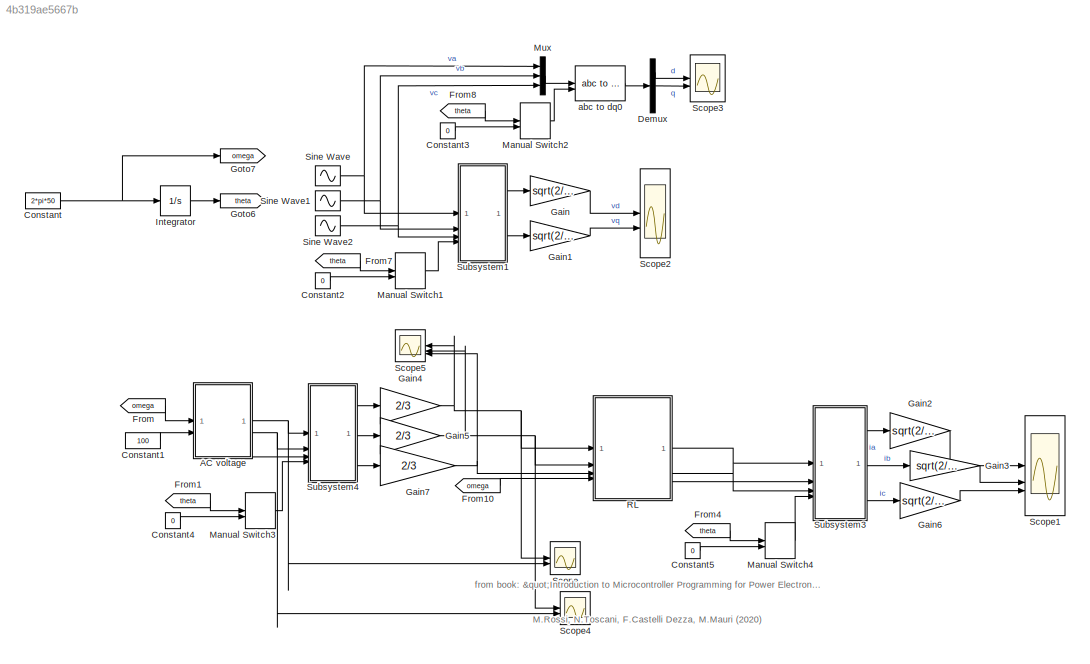
MODEL slx_4b319ae5667b
KIND model
CONFIG AbsTol = auto
CONFIG EnableMultiTasking = off
CONFIG FixedStep = auto
CONFIG MaxStep = 1e-6
CONFIG MinStep = auto
CONFIG RelTol = 1e-3
CONFIG SampleTimeConstraint = Unconstrained
CONFIG SolverName = ode23tb
CONFIG StartTime = 0.0
CONFIG StopTime = 0.1
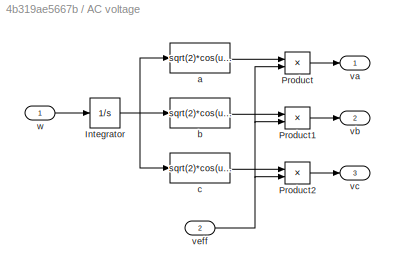
BLOCK [SubSystem] AC voltage
BLOCK [Integrator] AC voltage/Integrator
BLOCK [Product] AC voltage/Product
  InputSameDT = on
  OutDataTypeStr = Inherit: Same as first input
  RndMeth = Zero
  SaturateOnIntegerOverflow = on
BLOCK [Product] AC voltage/Product1
  InputSameDT = on
  OutDataTypeStr = Inherit: Same as first input
  RndMeth = Zero
  SaturateOnIntegerOverflow = on
BLOCK [Product] AC voltage/Product2
  InputSameDT = on
  OutDataTypeStr = Inherit: Same as first input
  RndMeth = Zero
  SaturateOnIntegerOverflow = on
BLOCK [Fcn] AC voltage/a 
  Expr = sqrt(2)*cos(u[1])
BLOCK [Fcn] AC voltage/b 
  Expr = sqrt(2)*cos(u[1]-2*pi/3)
BLOCK [Fcn] AC voltage/c 
  Expr = sqrt(2)*cos(u[1]+2*pi/3)
BLOCK [Outport] AC voltage/va
  VectorParamsAs1DForOutWhenUnconnected = off
BLOCK [Outport] AC voltage/vb
  Port = 2
  VectorParamsAs1DForOutWhenUnconnected = off
BLOCK [Outport] AC voltage/vc
  Port = 3
  VectorParamsAs1DForOutWhenUnconnected = off
BLOCK [Inport] AC voltage/veff
  Port = 2
BLOCK [Inport] AC voltage/w
BLOCK [Constant] Constant
  Value = 2*pi*50
BLOCK [Constant] Constant1
  Value = 100
BLOCK [Constant] Constant2
  Value = 0
BLOCK [Constant] Constant3
  Value = 0
BLOCK [Constant] Constant4
  Value = 0
BLOCK [Constant] Constant5
  Value = 0
BLOCK [Demux] Demux
  Outputs = 3
BLOCK [From] From
  GotoTag = omega
BLOCK [From] From1
  GotoTag = theta
BLOCK [From] From10
  GotoTag = omega
BLOCK [From] From4
  GotoTag = theta
BLOCK [From] From7
  GotoTag = theta
BLOCK [From] From8
  GotoTag = theta
BLOCK [Gain] Gain
  Gain = sqrt(2/3)
BLOCK [Gain] Gain1
  Gain = sqrt(2/3)
BLOCK [Gain] Gain2
  Gain = sqrt(2/3)
BLOCK [Gain] Gain3
  Gain = sqrt(2/3)
BLOCK [Gain] Gain4
  Gain = 2/3
BLOCK [Gain] Gain5
  Gain = 2/3
BLOCK [Gain] Gain6
  Gain = sqrt(2/3)
BLOCK [Gain] Gain7
  Gain = 2/3
BLOCK [Goto] Goto6
  GotoTag = theta
BLOCK [Goto] Goto7
  GotoTag = omega
BLOCK [Integrator] Integrator
BLOCK [ManualSwitch] Manual Switch1
  CurrentSetting = 0
BLOCK [ManualSwitch] Manual Switch2
BLOCK [ManualSwitch] Manual Switch3
BLOCK [ManualSwitch] Manual Switch4
BLOCK [Mux] Mux
  DisplayOption = bar
  Inputs = 3
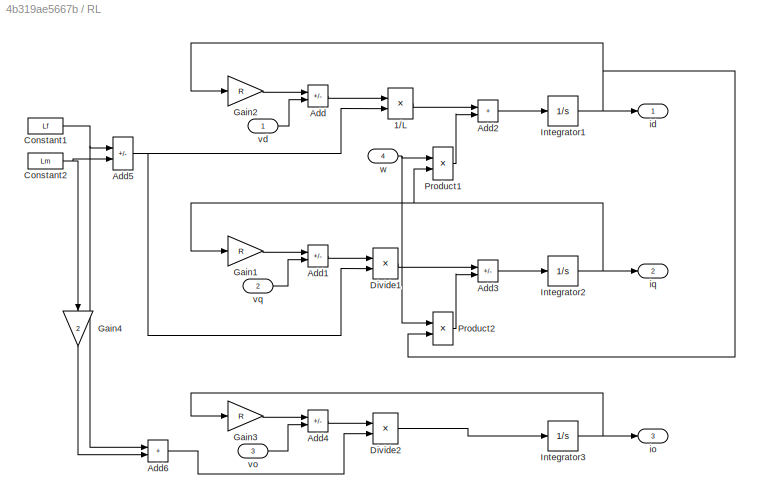
BLOCK [SubSystem] RL
BLOCK [Product] RL/1//L
  Inputs = */
BLOCK [Sum] RL/Add
  IconShape = rectangular
  Inputs = -+
BLOCK [Sum] RL/Add1
  IconShape = rectangular
  Inputs = -+
BLOCK [Sum] RL/Add2
  IconShape = rectangular
BLOCK [Sum] RL/Add3
  IconShape = rectangular
  Inputs = +-
BLOCK [Sum] RL/Add4
  IconShape = rectangular
  Inputs = -+
BLOCK [Sum] RL/Add5
  IconShape = rectangular
  Inputs = +-
BLOCK [Sum] RL/Add6
  IconShape = rectangular
BLOCK [Constant] RL/Constant1
  Value = Lf
BLOCK [Constant] RL/Constant2
  Value = Lm
BLOCK [Product] RL/Divide1
  Inputs = */
BLOCK [Product] RL/Divide2
  Inputs = */
BLOCK [Gain] RL/Gain1
  Gain = R
BLOCK [Gain] RL/Gain2
  Gain = R
BLOCK [Gain] RL/Gain3
  Gain = R
BLOCK [Gain] RL/Gain4
  Gain = 2
  NameLocation = left
BLOCK [Integrator] RL/Integrator1
BLOCK [Integrator] RL/Integrator2
BLOCK [Integrator] RL/Integrator3
BLOCK [Product] RL/Product1
BLOCK [Product] RL/Product2
BLOCK [Outport] RL/id
  VectorParamsAs1DForOutWhenUnconnected = off
BLOCK [Outport] RL/io
  Port = 3
  VectorParamsAs1DForOutWhenUnconnected = off
BLOCK [Outport] RL/iq
  Port = 2
  VectorParamsAs1DForOutWhenUnconnected = off
BLOCK [Inport] RL/vd
BLOCK [Inport] RL/vo
  Port = 3
BLOCK [Inport] RL/vq
  Port = 2
BLOCK [Inport] RL/w
  Port = 4
BLOCK [Scope] Scope
  Floating = off
  NumInputPorts = 2
  ScopeSpecificationString = Simulink.scopes.TimeScopeBlockCfg('CurrentConfiguration', extmgr.ConfigurationSet(extmgr.Configuration('Core','General UI',true),extmgr.Configuration('Core','Source UI',true),extmgr.Configuration('Sources','WiredSimulink',true,'DataLoggingVariableName','ScopeData3'),extmgr.Configuration('Visuals','Time Domain',true,'SerializedDisplays',{struct('MinYLimReal','-176.72734','MaxYLimReal','176.77121','...<+1465ch>
BLOCK [Scope] Scope1
  Floating = off
  NumInputPorts = 3
  ScopeSpecificationString = Simulink.scopes.TimeScopeBlockCfg('CurrentConfiguration', extmgr.ConfigurationSet(extmgr.Configuration('Core','General UI',true),extmgr.Configuration('Core','Source UI',true),extmgr.Configuration('Sources','WiredSimulink',true,'DataLoggingVariableName','ScopeData1'),extmgr.Configuration('Visuals','Time Domain',true,'SerializedDisplays',{struct('MinYLimReal','-23.30615','MaxYLimReal','21.51357','YL...<+2763ch>
BLOCK [Scope] Scope2
  Floating = off
  NumInputPorts = 2
  ScopeSpecificationString = Simulink.scopes.TimeScopeBlockCfg('CurrentConfiguration', extmgr.ConfigurationSet(extmgr.Configuration('Core','General UI',true),extmgr.Configuration('Core','Source UI',true),extmgr.Configuration('Sources','WiredSimulink',true,'DataLoggingVariableName','ScopeData2'),extmgr.Configuration('Visuals','Time Domain',true,'SerializedDisplays',{struct('MinYLimReal','-216.50256','MaxYLimReal','216.49436','...<+2021ch>
BLOCK [Scope] Scope3
  Floating = off
  NumInputPorts = 2
  ScopeSpecificationString = Simulink.scopes.TimeScopeBlockCfg('CurrentConfiguration', extmgr.ConfigurationSet(extmgr.Configuration('Core','General UI',true),extmgr.Configuration('Core','Source UI',true),extmgr.Configuration('Sources','WiredSimulink',true),extmgr.Configuration('Visuals','Time Domain',true,'SerializedDisplays',{struct('MinYLimReal','-180','MaxYLimReal','180','YLabelReal','','MinYLimMag','0.0000000000000','MaxY...<+1958ch>
BLOCK [Scope] Scope4
  Floating = off
  NumInputPorts = 2
  ScopeSpecificationString = Simulink.scopes.TimeScopeBlockCfg('CurrentConfiguration', extmgr.ConfigurationSet(extmgr.Configuration('Core','General UI',true),extmgr.Configuration('Core','Source UI',true),extmgr.Configuration('Sources','WiredSimulink',true,'DataLoggingVariableName','ScopeData4'),extmgr.Configuration('Visuals','Time Domain',true,'SerializedDisplays',{struct('MinYLimReal','-216.36889','MaxYLimReal','216.4855','Y...<+1418ch>
BLOCK [Scope] Scope5
  Floating = off
  NameLocation = top
  NumInputPorts = 3
  ScopeSpecificationString = Simulink.scopes.TimeScopeBlockCfg('CurrentConfiguration', extmgr.ConfigurationSet(extmgr.Configuration('Core','General UI',true),extmgr.Configuration('Core','Source UI',true),extmgr.Configuration('Sources','WiredSimulink',true,'DataLoggingVariableName','ScopeData5'),extmgr.Configuration('Visuals','Time Domain',true,'SerializedDisplays',{struct('MinYLimReal','-216.49488','MaxYLimReal','216.50508','...<+1419ch>
BLOCK [Sin] Sine Wave
  Amplitude = 100*sqrt(2)
  Frequency = 2*pi*50
  SampleTime = 0
BLOCK [Sin] Sine Wave1
  Amplitude = 100*sqrt(2)
  Frequency = 2*pi*50
  Phase = -2*pi/3
  SampleTime = 0
BLOCK [Sin] Sine Wave2
  Amplitude = 100*sqrt(2)
  Frequency = 2*pi*50
  Phase = -4*pi/3
  SampleTime = 0
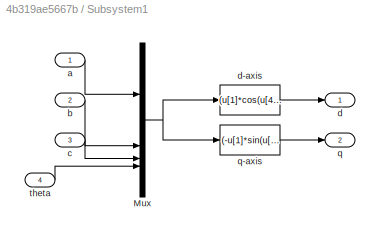
BLOCK [SubSystem] Subsystem1
BLOCK [Mux] Subsystem1/Mux
  DisplayOption = bar
BLOCK [Inport] Subsystem1/a
BLOCK [Inport] Subsystem1/b
  Port = 2
BLOCK [Inport] Subsystem1/c
  Port = 3
BLOCK [Outport] Subsystem1/d
  VectorParamsAs1DForOutWhenUnconnected = off
BLOCK [Fcn] Subsystem1/d-axis
  Expr = (u[1]*cos(u[4])+u[2]*cos(u[4]-2*pi/3)+u[3]*cos(u[4]+2*pi/3))
  NameLocation = top
BLOCK [Outport] Subsystem1/q
  Port = 2
  VectorParamsAs1DForOutWhenUnconnected = off
BLOCK [Fcn] Subsystem1/q-axis
  Expr = (-u[1]*sin(u[4])-u[2]*sin(u[4]-2*pi/3)-u[3]*sin(u[4]+2*pi/3))
BLOCK [Inport] Subsystem1/theta
  Port = 4
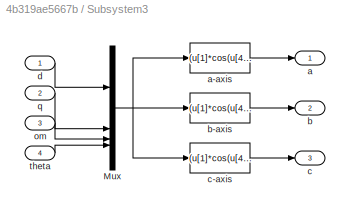
BLOCK [SubSystem] Subsystem3
BLOCK [Mux] Subsystem3/Mux
  DisplayOption = bar
BLOCK [Outport] Subsystem3/a
  VectorParamsAs1DForOutWhenUnconnected = off
BLOCK [Fcn] Subsystem3/a-axis
  Expr = (u[1]*cos(u[4])-u[2]*sin(u[4])+1*u[3])
BLOCK [Outport] Subsystem3/b
  Port = 2
  VectorParamsAs1DForOutWhenUnconnected = off
BLOCK [Fcn] Subsystem3/b-axis
  Expr = (u[1]*cos(u[4]-2*pi/3)-u[2]*sin(u[4]-2*pi/3)+1*u[3])
BLOCK [Outport] Subsystem3/c
  Port = 3
  VectorParamsAs1DForOutWhenUnconnected = off
BLOCK [Fcn] Subsystem3/c-axis
  Expr = (u[1]*cos(u[4]+2*pi/3)-u[2]*sin(u[4]+2*pi/3)+1*u[3])
BLOCK [Inport] Subsystem3/d
BLOCK [Inport] Subsystem3/om
  Port = 3
BLOCK [Inport] Subsystem3/q
  Port = 2
BLOCK [Inport] Subsystem3/theta
  Port = 4
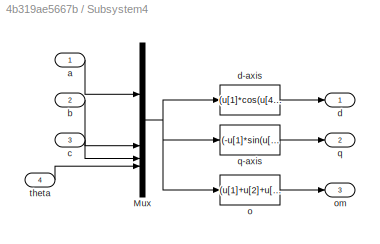
BLOCK [SubSystem] Subsystem4
BLOCK [Mux] Subsystem4/Mux
  DisplayOption = bar
BLOCK [Inport] Subsystem4/a
BLOCK [Inport] Subsystem4/b
  Port = 2
BLOCK [Inport] Subsystem4/c
  Port = 3
BLOCK [Outport] Subsystem4/d
  VectorParamsAs1DForOutWhenUnconnected = off
BLOCK [Fcn] Subsystem4/d-axis
  Expr = (u[1]*cos(u[4])+u[2]*cos(u[4]-2*pi/3)+u[3]*cos(u[4]+2*pi/3))
  NameLocation = top
BLOCK [Fcn] Subsystem4/o
  Expr = (u[1]+u[2]+u[3])/sqrt(2)
BLOCK [Outport] Subsystem4/om
  Port = 3
  VectorParamsAs1DForOutWhenUnconnected = off
BLOCK [Outport] Subsystem4/q
  Port = 2
  VectorParamsAs1DForOutWhenUnconnected = off
BLOCK [Fcn] Subsystem4/q-axis
  Expr = (-u[1]*sin(u[4])-u[2]*sin(u[4]-2*pi/3)-u[3]*sin(u[4]+2*pi/3))
BLOCK [Inport] Subsystem4/theta
  Port = 4
BLOCK [Reference] abc to dq0  REF=spsabctodq0Lib/abc to dq0
  LibrarySourceBlock = sps_lib/Control/abc to dq0
  SourceBlock = spsabctodq0Lib/abc to dq0
  SourceType = abc to dq0 Transformation
ANNOTATION (root): from book: "Introduction to Microcontroller Programming for Power Electronics Control Applications" M.Rossi, N.Toscani, F.Castelli Dezza, M.Mauri (2020)
NET AC voltage/Integrator:1 -> AC voltage/a :1, AC voltage/b :1, AC voltage/c :1
LINE AC voltage/Product1:1 -> AC voltage/vb:1
LINE AC voltage/Product2:1 -> AC voltage/vc:1
LINE AC voltage/Product:1 -> AC voltage/va:1
LINE AC voltage/a :1 -> AC voltage/Product:1
LINE AC voltage/b :1 -> AC voltage/Product1:1
LINE AC voltage/c :1 -> AC voltage/Product2:1
NET AC voltage/veff:1 -> AC voltage/Product1:2, AC voltage/Product2:2, AC voltage/Product:2
LINE AC voltage/w:1 -> AC voltage/Integrator:1
NET AC voltage:1 -> Scope:2, Subsystem4:1
NET AC voltage:2 -> Scope4:2, Subsystem4:2
LINE AC voltage:3 -> Subsystem4:3
LINE Constant1:1 -> AC voltage:2
LINE Constant2:1 -> Manual Switch1:2
LINE Constant3:1 -> Manual Switch2:2
LINE Constant4:1 -> Manual Switch3:2
LINE Constant5:1 -> Manual Switch4:2
NET Constant:1 -> Goto7:1, Integrator:1
LINE Demux:1 -> Scope3:1
LINE Demux:2 -> Scope3:2
LINE From10:1 -> RL:4
LINE From1:1 -> Manual Switch3:1
LINE From4:1 -> Manual Switch4:1
LINE From7:1 -> Manual Switch1:1
LINE From8:1 -> Manual Switch2:1
LINE From:1 -> AC voltage:1
LINE Gain1:1 -> Scope2:2
LINE Gain2:1 -> Scope1:1
LINE Gain3:1 -> Scope1:2
NET Gain4:1 -> RL:1, Scope5:1, Scope:1
NET Gain5:1 -> RL:2, Scope4:1, Scope5:2
LINE Gain6:1 -> Scope1:3
NET Gain7:1 -> RL:3, Scope5:3
LINE Gain:1 -> Scope2:1
LINE Integrator:1 -> Goto6:1
LINE Manual Switch1:1 -> Subsystem1:4
LINE Manual Switch2:1 -> abc to dq0:2
LINE Manual Switch3:1 -> Subsystem4:4
LINE Manual Switch4:1 -> Subsystem3:4
LINE Mux:1 -> abc to dq0:1
LINE RL/1//L:1 -> RL/Add2:1
LINE RL/Add1:1 -> RL/Divide1:1
LINE RL/Add2:1 -> RL/Integrator1:1
LINE RL/Add3:1 -> RL/Integrator2:1
LINE RL/Add4:1 -> RL/Divide2:1
NET RL/Add5:1 -> RL/1//L:2, RL/Divide1:2
LINE RL/Add6:1 -> RL/Divide2:2
LINE RL/Add:1 -> RL/1//L:1
NET RL/Constant1:1 -> RL/Add5:1, RL/Add6:1
NET RL/Constant2:1 -> RL/Add5:2, RL/Gain4:1
LINE RL/Divide1:1 -> RL/Add3:1
LINE RL/Divide2:1 -> RL/Integrator3:1
LINE RL/Gain1:1 -> RL/Add1:1
LINE RL/Gain2:1 -> RL/Add:1
LINE RL/Gain3:1 -> RL/Add4:1
LINE RL/Gain4:1 -> RL/Add6:2
NET RL/Integrator1:1 -> RL/Gain2:1, RL/Product2:2, RL/id:1
NET RL/Integrator2:1 -> RL/Gain1:1, RL/Product1:2, RL/iq:1
NET RL/Integrator3:1 -> RL/Gain3:1, RL/io:1
LINE RL/Product1:1 -> RL/Add2:2
LINE RL/Product2:1 -> RL/Add3:2
LINE RL/vd:1 -> RL/Add:2
LINE RL/vo:1 -> RL/Add4:2
LINE RL/vq:1 -> RL/Add1:2
NET RL/w:1 -> RL/Product1:1, RL/Product2:1
LINE RL:1 -> Subsystem3:1
LINE RL:2 -> Subsystem3:2
LINE RL:3 -> Subsystem3:3
NET Sine Wave1:1 -> Mux:2, Subsystem1:2
NET Sine Wave2:1 -> Mux:3, Subsystem1:3
NET Sine Wave:1 -> Mux:1, Subsystem1:1
NET Subsystem1/Mux:1 -> Subsystem1/d-axis:1, Subsystem1/q-axis:1
LINE Subsystem1/a:1 -> Subsystem1/Mux:1
LINE Subsystem1/b:1 -> Subsystem1/Mux:2
LINE Subsystem1/c:1 -> Subsystem1/Mux:3
LINE Subsystem1/d-axis:1 -> Subsystem1/d:1
LINE Subsystem1/q-axis:1 -> Subsystem1/q:1
LINE Subsystem1/theta:1 -> Subsystem1/Mux:4
LINE Subsystem1:1 -> Gain:1
LINE Subsystem1:2 -> Gain1:1
NET Subsystem3/Mux:1 -> Subsystem3/a-axis:1, Subsystem3/b-axis:1, Subsystem3/c-axis:1
LINE Subsystem3/a-axis:1 -> Subsystem3/a:1
LINE Subsystem3/b-axis:1 -> Subsystem3/b:1
LINE Subsystem3/c-axis:1 -> Subsystem3/c:1
LINE Subsystem3/d:1 -> Subsystem3/Mux:1
LINE Subsystem3/om:1 -> Subsystem3/Mux:3
LINE Subsystem3/q:1 -> Subsystem3/Mux:2
LINE Subsystem3/theta:1 -> Subsystem3/Mux:4
LINE Subsystem3:1 -> Gain2:1
LINE Subsystem3:2 -> Gain3:1
LINE Subsystem3:3 -> Gain6:1
NET Subsystem4/Mux:1 -> Subsystem4/d-axis:1, Subsystem4/o:1, Subsystem4/q-axis:1
LINE Subsystem4/a:1 -> Subsystem4/Mux:1
LINE Subsystem4/b:1 -> Subsystem4/Mux:2
LINE Subsystem4/c:1 -> Subsystem4/Mux:3
LINE Subsystem4/d-axis:1 -> Subsystem4/d:1
LINE Subsystem4/o:1 -> Subsystem4/om:1
LINE Subsystem4/q-axis:1 -> Subsystem4/q:1
LINE Subsystem4/theta:1 -> Subsystem4/Mux:4
LINE Subsystem4:1 -> Gain4:1
LINE Subsystem4:2 -> Gain5:1
LINE Subsystem4:3 -> Gain7:1
LINE abc to dq0:1 -> Demux:1
note: NET lines group one-source signal fan-out (src -> all destinations, sorted); 1:1 wires keep LINE
